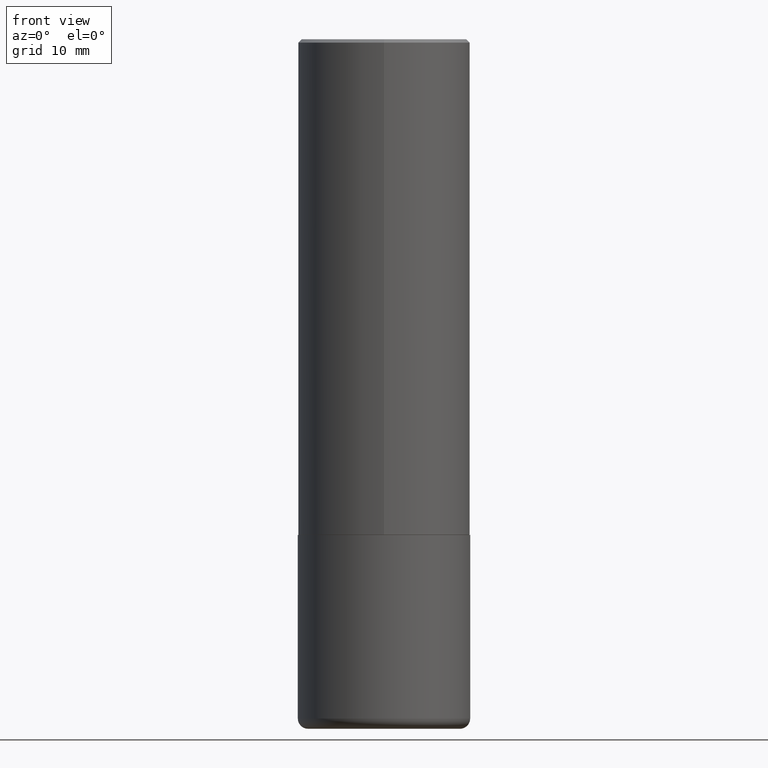
[diagram: clean part render]
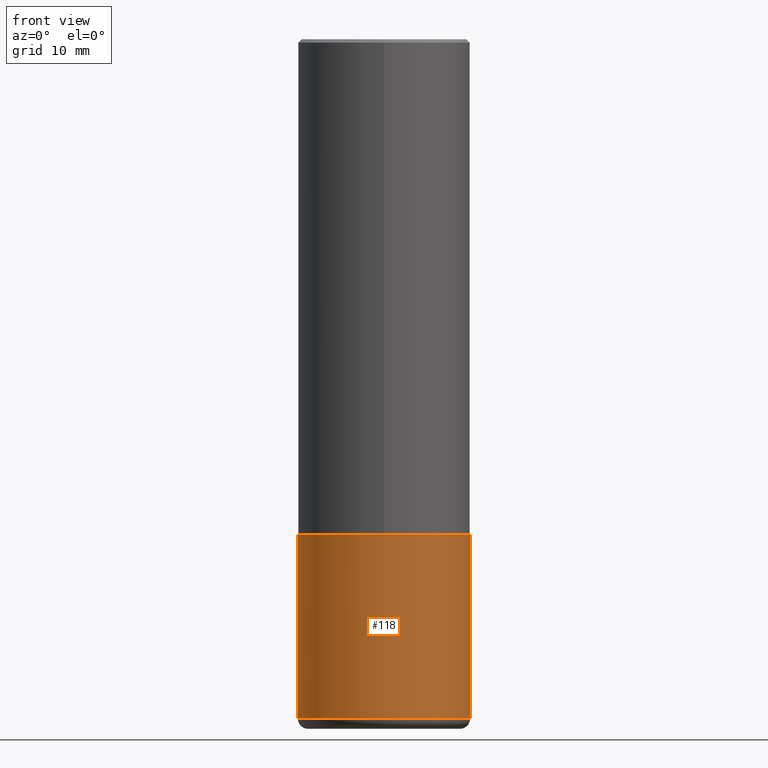
[diagram: same view with one face highlighted and labeled with its STEP entity id]
A machine part, front view. The second image highlights one B-rep face of the part: STEP entity #118.
In plain terms, the highlighted cylindrical surface (partial cylindrical patch) has radius 12.7 mm, axis along (-0, 0, 1).
Its self-contained STEP definition (entity closure, byte-faithful):
#20 = AXIS2_PLACEMENT_3D ( 'NONE', #165, #140, #72 ) ;
#51 = CARTESIAN_POINT ( 'NONE',  ( 0.5000000000000000000, -1.352949018801717646E-14, -2.875000000000000000 ) ) ;
#72 = DIRECTION ( 'NONE',  ( 1.000000000000000000, -6.982962677686266711E-15, 4.876176775795935793E-29 ) ) ;
#76 = FACE_OUTER_BOUND ( 'NONE', #374, .T. ) ;
#77 = EDGE_CURVE ( 'NONE', #388, #372, #96, .T. ) ;
#96 = CIRCLE ( 'NONE', #350, 0.5000000000000001110 ) ;
#97 = EDGE_CURVE ( 'NONE', #372, #253, #199, .T. ) ;
#100 = EDGE_CURVE ( 'NONE', #194, #253, #104, .T. ) ;
#104 = CIRCLE ( 'NONE', #344, 0.5000000000000000000 ) ;
#118 = ADVANCED_FACE ( 'NONE', ( #76 ), #361, .T. ) ;
#136 = DIRECTION ( 'NONE',  ( -2.445468806185136597E-29, 3.491481338843145583E-15, 1.000000000000000000 ) ) ;
#139 = DIRECTION ( 'NONE',  ( -2.445468806185136597E-29, 3.491481338843145583E-15, 1.000000000000000000 ) ) ;
#140 = DIRECTION ( 'NONE',  ( -2.445468806185136597E-29, 3.491481338843145583E-15, 1.000000000000000000 ) ) ;
#162 = VECTOR ( 'NONE', #373, 39.37007874015748143 ) ;
#165 = CARTESIAN_POINT ( 'NONE',  ( 0.000000000000000000, 0.000000000000000000, 0.000000000000000000 ) ) ;
#194 = VERTEX_POINT ( 'NONE', #231 ) ;
#199 = LINE ( 'NONE', #366, #244 ) ;
#201 = DIRECTION ( 'NONE',  ( 1.000000000000000000, -6.982962677686265133E-15, 0.000000000000000000 ) ) ;
#207 = CARTESIAN_POINT ( 'NONE',  ( -0.5000000000000000000, 3.552713678800500929E-15, -2.459467545127452891E-29 ) ) ;
#231 = CARTESIAN_POINT ( 'NONE',  ( -0.5000000000000000000, -8.344508983307518419E-15, -2.875000000000000000 ) ) ;
#244 = VECTOR ( 'NONE', #393, 39.37007874015748143 ) ;
#253 = VERTEX_POINT ( 'NONE', #51 ) ;
#261 = DIRECTION ( 'NONE',  ( 1.000000000000000000, -6.982962677686266711E-15, 0.000000000000000000 ) ) ;
#269 = CARTESIAN_POINT ( 'NONE',  ( 0.5000000000000001110, -1.724791781388512737E-14, -3.939999999999999947 ) ) ;
#282 = ORIENTED_EDGE ( 'NONE', *, *, #303, .F. ) ;
#301 = CARTESIAN_POINT ( 'NONE',  ( 9.635147096369438236E-29, -1.375643647504199401E-14, -3.939999999999999947 ) ) ;
#303 = EDGE_CURVE ( 'NONE', #388, #194, #308, .T. ) ;
#308 = LINE ( 'NONE', #207, #162 ) ;
#309 = ORIENTED_EDGE ( 'NONE', *, *, #77, .T. ) ;
#328 = CARTESIAN_POINT ( 'NONE',  ( 7.030722817782267716E-29, -1.003800884917404311E-14, -2.875000000000000000 ) ) ;
#336 = CARTESIAN_POINT ( 'NONE',  ( -0.5000000000000001110, -1.020372279624149151E-14, -3.939999999999999947 ) ) ;
#344 = AXIS2_PLACEMENT_3D ( 'NONE', #328, #136, #261 ) ;
#347 = ORIENTED_EDGE ( 'NONE', *, *, #100, .F. ) ;
#350 = AXIS2_PLACEMENT_3D ( 'NONE', #301, #139, #201 ) ;
#361 = CYLINDRICAL_SURFACE ( 'NONE', #20, 0.5000000000000000000 ) ;
#366 = CARTESIAN_POINT ( 'NONE',  ( 0.5000000000000000000, -3.491481338843133355E-15, 2.438088387897967896E-29 ) ) ;
#372 = VERTEX_POINT ( 'NONE', #269 ) ;
#373 = DIRECTION ( 'NONE',  ( -2.445468806185136877E-29, 3.491481338843145188E-15, 1.000000000000000000 ) ) ;
#374 = EDGE_LOOP ( 'NONE', ( #282, #309, #411, #347 ) ) ;
#388 = VERTEX_POINT ( 'NONE', #336 ) ;
#393 = DIRECTION ( 'NONE',  ( -2.445468806185136877E-29, 3.491481338843145188E-15, 1.000000000000000000 ) ) ;
#411 = ORIENTED_EDGE ( 'NONE', *, *, #97, .T. ) ;